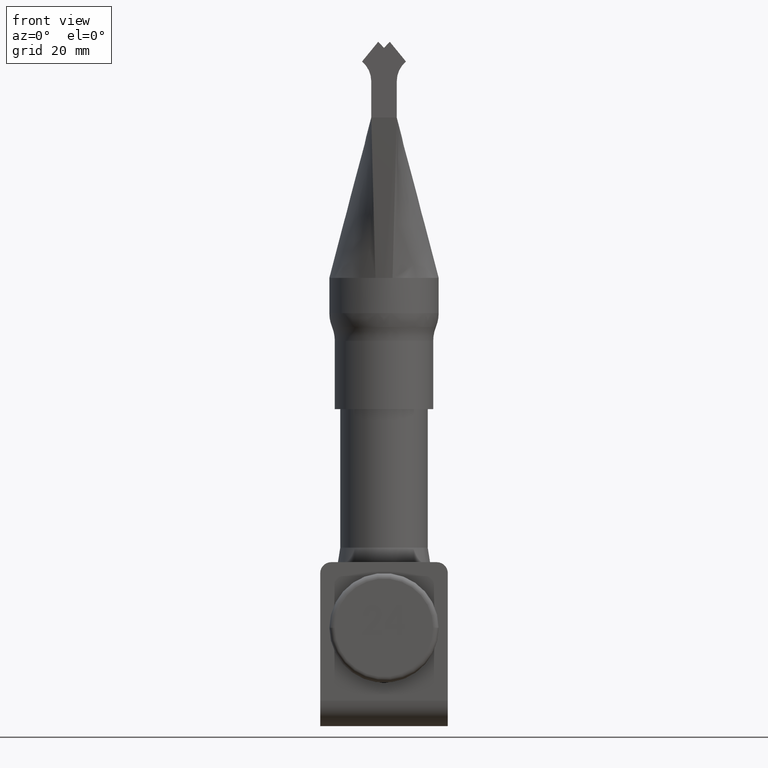
[diagram: clean part render]
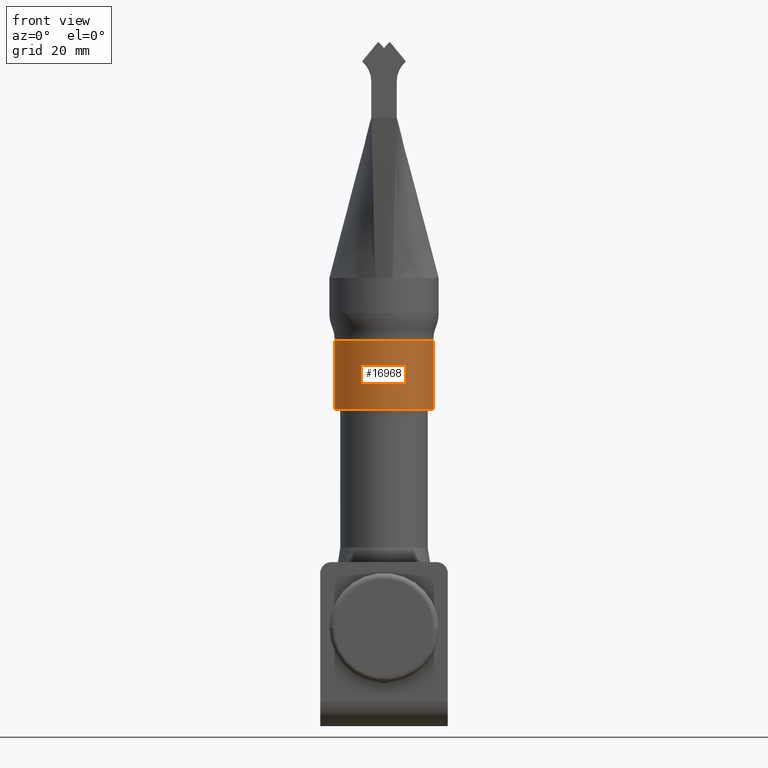
[diagram: same view with one face highlighted and labeled with its STEP entity id]
A machine part, front view. The second image highlights one B-rep face of the part: STEP entity #16968.
In plain terms, the highlighted cylindrical surface (partial cylindrical patch) has radius 13.5 mm, axis along (-0, -0, -1).
Its self-contained STEP definition (entity closure, byte-faithful):
#825 = EDGE_CURVE ( 'NONE', #15718, #21894, #23217, .T. ) ;
#827 = LINE ( 'NONE', #12905, #3501 ) ;
#1361 = DIRECTION ( 'NONE',  ( -0.0000000000000000000, -0.0000000000000000000, -1.000000000000000000 ) ) ;
#1750 = CIRCLE ( 'NONE', #16382, 13.50000000000000000 ) ;
#2039 = DIRECTION ( 'NONE',  ( 1.000000000000000000, 0.0000000000000000000, 0.0000000000000000000 ) ) ;
#3501 = VECTOR ( 'NONE', #1361, 1000.000000000000000 ) ;
#3680 = ORIENTED_EDGE ( 'NONE', *, *, #15374, .T. ) ;
#6120 = CARTESIAN_POINT ( 'NONE',  ( -13.50000000000000000, 0.0000000000000000000, 24.00000000000000000 ) ) ;
#6758 = AXIS2_PLACEMENT_3D ( 'NONE', #18829, #18909, #9337 ) ;
#7237 = AXIS2_PLACEMENT_3D ( 'NONE', #8542, #21923, #14256 ) ;
#8542 = CARTESIAN_POINT ( 'NONE',  ( 0.0000000000000000000, 0.0000000000000000000, 18.73217312357362700 ) ) ;
#9282 = ORIENTED_EDGE ( 'NONE', *, *, #17160, .T. ) ;
#9337 = DIRECTION ( 'NONE',  ( -1.000000000000000000, 0.0000000000000000000, 0.0000000000000000000 ) ) ;
#9469 = FACE_OUTER_BOUND ( 'NONE', #17951, .T. ) ;
#11579 = CARTESIAN_POINT ( 'NONE',  ( 0.0000000000000000000, 0.0000000000000000000, 0.0000000000000000000 ) ) ;
#12905 = CARTESIAN_POINT ( 'NONE',  ( 13.50000000000000000, 1.653273178848926900E-015, 24.00000000000000000 ) ) ;
#13709 = VERTEX_POINT ( 'NONE', #19844 ) ;
#14256 = DIRECTION ( 'NONE',  ( 1.000000000000000000, 0.0000000000000000000, 0.0000000000000000000 ) ) ;
#15374 = EDGE_CURVE ( 'NONE', #21894, #13709, #1750, .T. ) ;
#15718 = VERTEX_POINT ( 'NONE', #22454 ) ;
#16268 = EDGE_CURVE ( 'NONE', #22141, #13709, #827, .T. ) ;
#16382 = AXIS2_PLACEMENT_3D ( 'NONE', #11579, #21325, #2039 ) ;
#16721 = ORIENTED_EDGE ( 'NONE', *, *, #16268, .F. ) ;
#16968 = ADVANCED_FACE ( 'NONE', ( #9469 ), #22138, .T. ) ;
#17160 = EDGE_CURVE ( 'NONE', #22141, #15718, #24209, .T. ) ;
#17951 = EDGE_LOOP ( 'NONE', ( #16721, #9282, #24294, #3680 ) ) ;
#18829 = CARTESIAN_POINT ( 'NONE',  ( 0.0000000000000000000, 0.0000000000000000000, 24.00000000000000000 ) ) ;
#18909 = DIRECTION ( 'NONE',  ( -0.0000000000000000000, -0.0000000000000000000, -1.000000000000000000 ) ) ;
#19064 = CARTESIAN_POINT ( 'NONE',  ( -13.50000000000000000, 0.0000000000000000000, 0.0000000000000000000 ) ) ;
#19574 = VECTOR ( 'NONE', #23434, 1000.000000000000000 ) ;
#19844 = CARTESIAN_POINT ( 'NONE',  ( 13.50000000000000000, 1.653273178848926900E-015, 0.0000000000000000000 ) ) ;
#21325 = DIRECTION ( 'NONE',  ( 0.0000000000000000000, 0.0000000000000000000, 1.000000000000000000 ) ) ;
#21894 = VERTEX_POINT ( 'NONE', #19064 ) ;
#21923 = DIRECTION ( 'NONE',  ( -0.0000000000000000000, -0.0000000000000000000, -1.000000000000000000 ) ) ;
#22138 = CYLINDRICAL_SURFACE ( 'NONE', #6758, 13.50000000000000000 ) ;
#22141 = VERTEX_POINT ( 'NONE', #24178 ) ;
#22454 = CARTESIAN_POINT ( 'NONE',  ( -13.50000000000000000, 0.0000000000000000000, 18.73217312357362700 ) ) ;
#23217 = LINE ( 'NONE', #6120, #19574 ) ;
#23434 = DIRECTION ( 'NONE',  ( -0.0000000000000000000, -0.0000000000000000000, -1.000000000000000000 ) ) ;
#24178 = CARTESIAN_POINT ( 'NONE',  ( 13.50000000000000000, 1.653273178848926900E-015, 18.73217312357362700 ) ) ;
#24209 = CIRCLE ( 'NONE', #7237, 13.50000000000000000 ) ;
#24294 = ORIENTED_EDGE ( 'NONE', *, *, #825, .T. ) ;